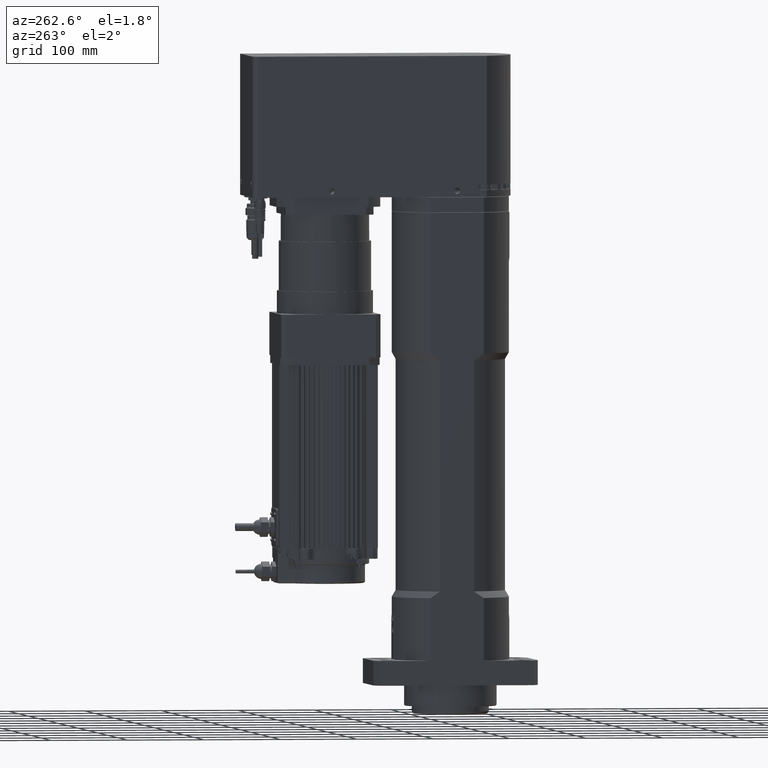
[diagram: clean part render]
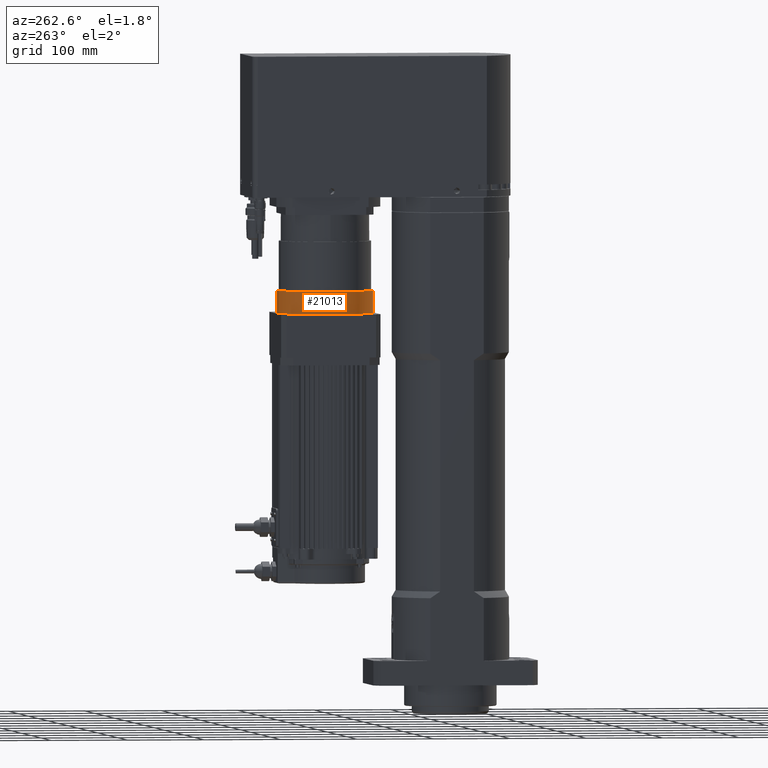
[diagram: same view with one face highlighted and labeled with its STEP entity id]
A machine part, auxiliary view. The second image highlights one B-rep face of the part: STEP entity #21013.
In plain terms, the highlighted cylindrical surface (bore or boss wall) has radius 62.5 mm, axis along (-0, -0, 1).
Its self-contained STEP definition (entity closure, byte-faithful):
#4027=FACE_BOUND('',#6782,.T.);
#4385=CYLINDRICAL_SURFACE('',#22966,62.5);
#5305=FACE_OUTER_BOUND('',#6781,.T.);
#6781=EDGE_LOOP('',(#16433));
#6782=EDGE_LOOP('',(#16434));
#7781=CIRCLE('',#22834,62.5);
#7851=CIRCLE('',#22967,62.5);
#9258=VERTEX_POINT('',#36314);
#9415=VERTEX_POINT('',#36742);
#11675=EDGE_CURVE('',#9258,#9258,#7781,.T.);
#11883=EDGE_CURVE('',#9415,#9415,#7851,.T.);
#16433=ORIENTED_EDGE('',*,*,#11883,.F.);
#16434=ORIENTED_EDGE('',*,*,#11675,.F.);
#21013=ADVANCED_FACE('',(#5305,#4027),#4385,.T.);
#22834=AXIS2_PLACEMENT_3D('',#36315,#27334,#27335);
#22966=AXIS2_PLACEMENT_3D('',#36741,#27736,#27737);
#22967=AXIS2_PLACEMENT_3D('',#36743,#27738,#27739);
#27334=DIRECTION('center_axis',(-3.81149354564397E-69,-2.13267588378177E-53,
1.));
#27335=DIRECTION('ref_axis',(-1.,3.69394545708271E-16,4.06649484668157E-69));
#27736=DIRECTION('center_axis',(-3.81149354564397E-69,-2.13267588378177E-53,
1.));
#27737=DIRECTION('ref_axis',(-1.,3.69394545708271E-16,4.06649484668157E-69));
#27738=DIRECTION('center_axis',(3.81149354564397E-69,2.13267588378177E-53,
-1.));
#27739=DIRECTION('ref_axis',(-1.,3.69394545708271E-16,4.06649484668157E-69));
#36314=CARTESIAN_POINT('',(-11.,225.524385409365,511.5));
#36315=CARTESIAN_POINT('Origin',(1.59387409000704E-14,164.000000000001,
511.5));
#36741=CARTESIAN_POINT('Origin',(1.59387409000704E-14,164.000000000001,
482.));
#36742=CARTESIAN_POINT('',(-11.,225.524385409365,482.));
#36743=CARTESIAN_POINT('Origin',(1.59387409000704E-14,164.000000000001,
482.));